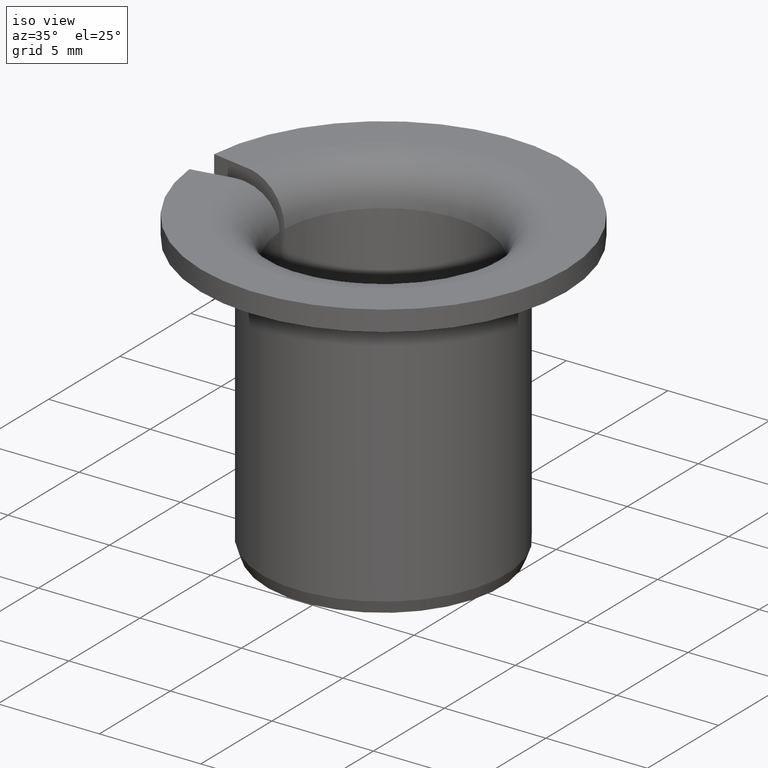
[diagram: clean part render]
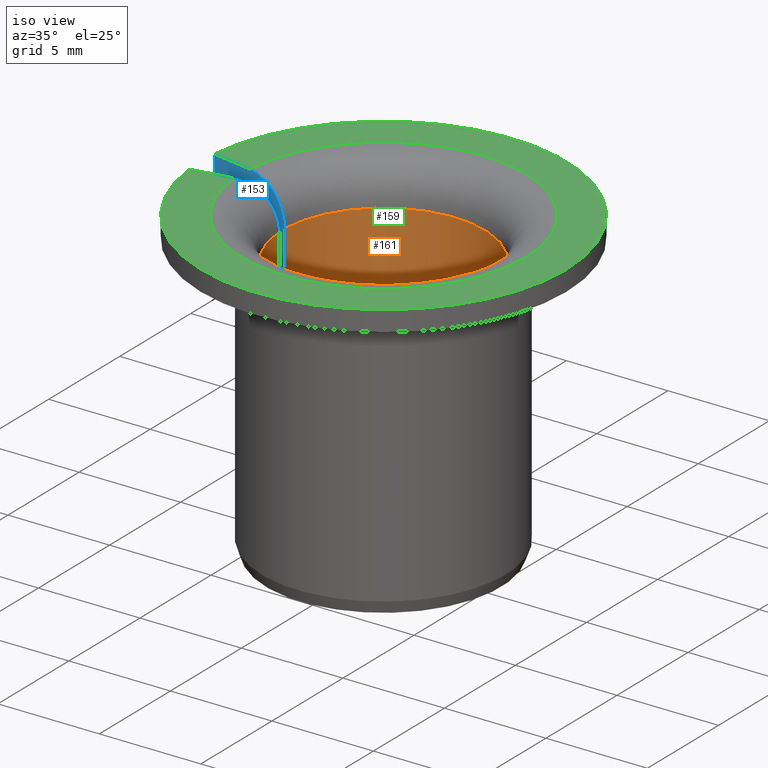
[diagram: same view with three faces highlighted in distinct colors, each labeled with its STEP entity id]
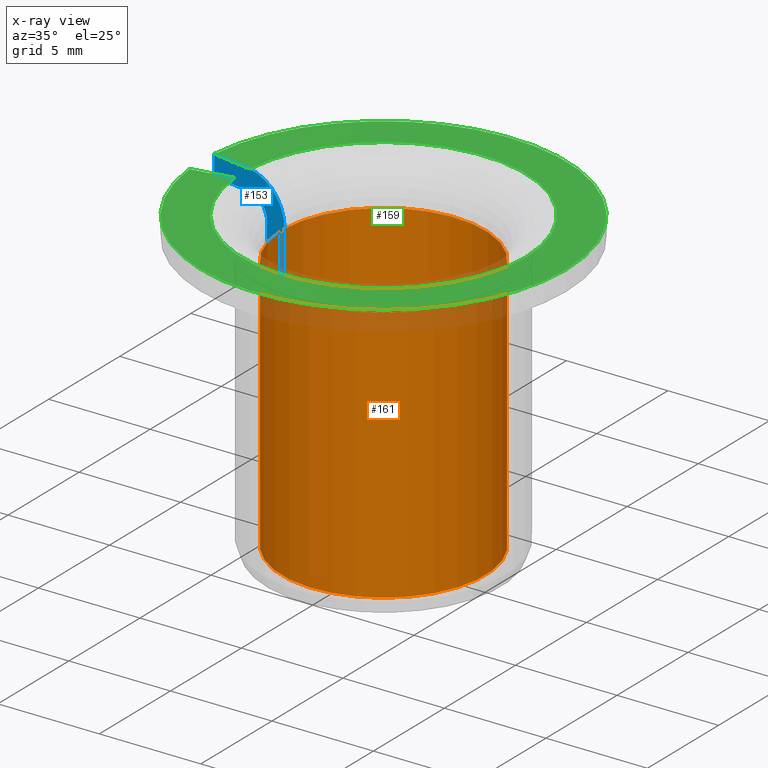
[diagram: x-ray of the same camera — body ghosted, the three highlighted faces saturated]
A machine part, iso view with three faces highlighted in distinct colors.
The next image is the same camera in x-ray (body ghosted, the three faces saturated) — at least one of them is partly hidden behind the body in this view.
Their STEP definitions:

[orange] entity #161 — the highlighted cylindrical surface (partial cylindrical patch) has radius 5 mm, axis along (-0, 0, -1).
#161=ADVANCED_FACE('',(#183),#184,.F.);
#183=FACE_OUTER_BOUND('',#208,.T.);
#184=CYLINDRICAL_SURFACE('',#209,0.005);
#208=EDGE_LOOP('',(#278,#279,#280,#281));
#209=AXIS2_PLACEMENT_3D('',#282,#283,#284);
#278=ORIENTED_EDGE('',*,*,#324,.T.);
#279=ORIENTED_EDGE('',*,*,#338,.T.);
#280=ORIENTED_EDGE('',*,*,#325,.F.);
#281=ORIENTED_EDGE('',*,*,#321,.F.);
#282=CARTESIAN_POINT('',(0.0,0.0,0.0));
#283=DIRECTION('',(0.0,-6.12323399573677E-017,-1.0));
#284=DIRECTION('',(0.0,1.0,-6.12323399573677E-017));
#321=EDGE_CURVE('',#359,#342,#361,.F.);
#324=EDGE_CURVE('',#359,#364,#366,.T.);
#325=EDGE_CURVE('',#342,#367,#368,.T.);
#338=EDGE_CURVE('',#364,#367,#387,.F.);
#342=VERTEX_POINT('',#392);
#359=VERTEX_POINT('',#439);
#361=LINE('',#444,#445);
#364=VERTEX_POINT('',#448);
#366=CIRCLE('',#453,0.005);
#367=VERTEX_POINT('',#454);
#368=CIRCLE('',#455,0.005);
#387=LINE('',#500,#501);
#392=CARTESIAN_POINT('',(0.00499690911439787,-0.000175781974182525,0.013));
#439=CARTESIAN_POINT('',(0.00499690911439787,-0.000175781974182526,0.0003));
#444=CARTESIAN_POINT('',(0.00499690911439787,-0.000175781974182526,-2.76794897842194E-020));
#445=VECTOR('',#515,1.0);
#448=CARTESIAN_POINT('',(0.00499690911439787,0.000175781974182527,0.0003));
#453=AXIS2_PLACEMENT_3D('',#519,#520,#521);
#454=CARTESIAN_POINT('',(0.00499690911439787,0.000175781974182527,0.013));
#455=AXIS2_PLACEMENT_3D('',#522,#523,#524);
#500=CARTESIAN_POINT('',(0.00499690911439787,0.000175781974182526,2.51145242543137E-020));
#501=VECTOR('',#547,1.0);
#515=DIRECTION('',(0.0,-6.12323399573677E-017,-1.0));
#519=CARTESIAN_POINT('',(0.0,0.0,0.0003));
#520=DIRECTION('',(0.0,-6.12323399573677E-017,-1.0));
#521=DIRECTION('',(0.0,1.0,-6.12323399573677E-017));
#522=CARTESIAN_POINT('',(0.0,0.0,0.013));
#523=DIRECTION('',(0.0,-6.12323399573677E-017,-1.0));
#524=DIRECTION('',(0.0,1.0,-6.12323399573677E-017));
#547=DIRECTION('',(0.0,-6.12323399573677E-017,-1.0));

[blue] entity #153 — the highlighted planar face has unit normal (0.1736, 0.9848, 0).
#153=ADVANCED_FACE('',(#167),#168,.F.);
#167=FACE_OUTER_BOUND('',#192,.T.);
#168=PLANE('',#193);
#192=EDGE_LOOP('',(#216,#217,#218,#219,#220,#221,#222,#223,#224,#225));
#193=AXIS2_PLACEMENT_3D('',#226,#227,#228);
#216=ORIENTED_EDGE('',*,*,#312,.T.);
#217=ORIENTED_EDGE('',*,*,#313,.F.);
#218=ORIENTED_EDGE('',*,*,#314,.T.);
#219=ORIENTED_EDGE('',*,*,#315,.T.);
#220=ORIENTED_EDGE('',*,*,#316,.T.);
#221=ORIENTED_EDGE('',*,*,#317,.T.);
#222=ORIENTED_EDGE('',*,*,#318,.T.);
#223=ORIENTED_EDGE('',*,*,#319,.F.);
#224=ORIENTED_EDGE('',*,*,#320,.T.);
#225=ORIENTED_EDGE('',*,*,#321,.T.);
#226=CARTESIAN_POINT('',(-0.00670955855681633,0.00188838412504393,-1.25764800889873E-018));
#227=DIRECTION('',(-0.173648177666931,-0.984807753012208,1.15648231731787E-016));
#228=DIRECTION('',(-2.00821046906277E-017,-1.13891275231616E-016,-1.0));
#312=EDGE_CURVE('',#342,#343,#344,.T.);
#313=EDGE_CURVE('',#345,#343,#346,.T.);
#314=EDGE_CURVE('',#345,#347,#348,.T.);
#315=EDGE_CURVE('',#347,#349,#350,.T.);
#316=EDGE_CURVE('',#349,#351,#352,.T.);
#317=EDGE_CURVE('',#351,#353,#354,.T.);
#318=EDGE_CURVE('',#353,#355,#356,.T.);
#319=EDGE_CURVE('',#357,#355,#358,.T.);
#320=EDGE_CURVE('',#357,#359,#360,.T.);
#321=EDGE_CURVE('',#359,#342,#361,.F.);
#342=VERTEX_POINT('',#392);
#343=VERTEX_POINT('',#393);
#344=B_SPLINE_CURVE_WITH_KNOTS('',3,(#394,#395,#396,#397,#398,#399,#400,#401,#402,#403,#404,#405,#406,#407),.UNSPECIFIED.,.F.,.F.,(4,2,2,2,2,2,4),(1.97148637082927E-007,0.000392055035355555,0.000783912922074027,0.0011757708087925,0.00156762869551097,0.00235134446894792,0.00313506024238487),.UNSPECIFIED.);
#345=VERTEX_POINT('',#408);
#346=LINE('',#409,#410);
#347=VERTEX_POINT('',#411);
#348=LINE('',#412,#413);
#349=VERTEX_POINT('',#414);
#350=LINE('',#415,#416);
#351=VERTEX_POINT('',#417);
#352=B_SPLINE_CURVE_WITH_KNOTS('',3,(#418,#419,#420,#421,#422,#423,#424,#425,#426,#427),.UNSPECIFIED.,.F.,.F.,(4,2,2,2,4),(2.00072936889103E-005,0.000411708104519548,0.000803408915350187,0.00119510972618082,0.00158681053701146),.UNSPECIFIED.);
#353=VERTEX_POINT('',#428);
#354=LINE('',#429,#430);
#355=VERTEX_POINT('',#431);
#356=B_SPLINE_CURVE_WITH_KNOTS('',3,(#432,#433,#434,#435),.UNSPECIFIED.,.F.,.F.,(4,4),(2.13004581254689E-007,0.000639246175160087),.UNSPECIFIED.);
#357=VERTEX_POINT('',#436);
#358=LINE('',#437,#438);
#359=VERTEX_POINT('',#439);
#360=B_SPLINE_CURVE_WITH_KNOTS('',3,(#440,#441,#442,#443),.UNSPECIFIED.,.F.,.F.,(4,4),(2.31469456632835E-007,0.000347463676522377),.UNSPECIFIED.);
#361=LINE('',#444,#445);
#392=CARTESIAN_POINT('',(0.00499690911439787,-0.000175781974182525,0.013));
#393=CARTESIAN_POINT('',(0.00698024726283339,-0.000525498001620076,0.015));
#394=CARTESIAN_POINT('',(0.00499690911439787,-0.000175781974182525,0.013));
#395=CARTESIAN_POINT('',(0.00499690911439787,-0.000175781974182525,0.0131325073022672));
#396=CARTESIAN_POINT('',(0.00500987598777973,-0.000178068383815177,0.0132627678241997));
#397=CARTESIAN_POINT('',(0.00506064444528327,-0.000187020232642003,0.0135189857382304));
#398=CARTESIAN_POINT('',(0.00509908036619081,-0.000193797522526379,0.0136462915934546));
#399=CARTESIAN_POINT('',(0.0051991852674803,-0.000211448717524873,0.0138886700301087));
#400=CARTESIAN_POINT('',(0.00526039991893803,-0.000222242512191536,0.0140035803095491));
#401=CARTESIAN_POINT('',(0.00540490011618038,-0.000247721795683058,0.0142209855930756));
#402=CARTESIAN_POINT('',(0.0054888201766522,-0.000262519166566925,0.0143237067417591));
#403=CARTESIAN_POINT('',(0.00576344234528216,-0.000310942464397057,0.0145998053688362));
#404=CARTESIAN_POINT('',(0.00598440069470476,-0.000349903383013071,0.0147483176485645));
#405=CARTESIAN_POINT('',(0.00646021006076225,-0.000433801411922796,0.0149471992978129));
#406=CARTESIAN_POINT('',(0.00671960322435305,-0.00047953942527518,0.015));
#407=CARTESIAN_POINT('',(0.00698024726283339,-0.000525498001620078,0.015));
#408=CARTESIAN_POINT('',(0.00895744903480042,-0.00087413202032245,0.015));
#409=CARTESIAN_POINT('',(0.0118784620240977,-0.00138918542133544,0.015));
#410=VECTOR('',#510,1.0);
#411=CARTESIAN_POINT('',(0.00895744903480042,-0.00087413202032245,0.014));
#412=CARTESIAN_POINT('',(0.00895744903480042,-0.000874132020322451,1.5082117650264E-020));
#413=VECTOR('',#511,1.0);
#414=CARTESIAN_POINT('',(0.00698024726283341,-0.00052549800162008,0.014));
#415=CARTESIAN_POINT('',(0.00690953893117886,-0.000513030214988501,0.014));
#416=VECTOR('',#512,1.0);
#417=CARTESIAN_POINT('',(0.00598973360714681,-0.000350843719362359,0.013));
#418=CARTESIAN_POINT('',(0.00698024726283341,-0.000525498001620082,0.014));
#419=CARTESIAN_POINT('',(0.00685023185644087,-0.000502572777565301,0.014));
#420=CARTESIAN_POINT('',(0.00672174279182906,-0.000479916688748246,0.0139740838243384));
#421=CARTESIAN_POINT('',(0.00648277217338819,-0.000437779721120534,0.0138743920227315));
#422=CARTESIAN_POINT('',(0.0063727205672248,-0.000418374653683625,0.0138003157734708));
#423=CARTESIAN_POINT('',(0.00618984042104949,-0.000386127949677009,0.0136164015934037));
#424=CARTESIAN_POINT('',(0.00611565501819323,-0.000373047061578725,0.0135048947289893));
#425=CARTESIAN_POINT('',(0.00601622534680585,-0.000355514927830153,0.0132640740875742));
#426=CARTESIAN_POINT('',(0.00598973360714299,-0.000350843719361686,0.0131324628118535));
#427=CARTESIAN_POINT('',(0.00598973360714293,-0.000350843719361676,0.0130000000000005));
#428=CARTESIAN_POINT('',(0.00598973360714681,-0.000350843719362359,0.0006));
#429=CARTESIAN_POINT('',(0.00598973360714681,-0.000350843719362359,-1.69600494898377E-020));
#430=VECTOR('',#513,1.0);
#431=CARTESIAN_POINT('',(0.00577315785052536,-0.000312655570102648,6.43083039248804E-019));
#432=CARTESIAN_POINT('',(0.00598973360714681,-0.000350843719362362,0.000599999999999998));
#433=CARTESIAN_POINT('',(0.00591755802003092,-0.000338117216005356,0.000399993922389269));
#434=CARTESIAN_POINT('',(0.00584536672532868,-0.000325387942977074,0.000199993688463095));
#435=CARTESIAN_POINT('',(0.00577315785052536,-0.000312655570102649,5.41743120010639E-019));
#436=CARTESIAN_POINT('',(0.00516909622521673,-0.00020614320755013,6.43083039248804E-019));
#437=CARTESIAN_POINT('',(0.004,0.0,6.43083039248804E-019));
#438=VECTOR('',#514,1.0);
#439=CARTESIAN_POINT('',(0.00499690911439787,-0.000175781974182526,0.0003));
#440=CARTESIAN_POINT('',(0.00516909622521673,-0.00020614320755013,-8.34540025536637E-019));
#441=CARTESIAN_POINT('',(0.00511171415103256,-0.000196025199662446,0.00010000806463709));
#442=CARTESIAN_POINT('',(0.00505431892522167,-0.000185904872788131,0.000200008350054885));
#443=CARTESIAN_POINT('',(0.00499690911439787,-0.000175781974182527,0.000299999999999999));
#444=CARTESIAN_POINT('',(0.00499690911439787,-0.000175781974182526,-2.76794897842194E-020));
#445=VECTOR('',#515,1.0);
#510=DIRECTION('',(-0.984807753012208,0.173648177666931,0.0));
#511=DIRECTION('',(0.0,-6.12323399573677E-017,-1.0));
#512=DIRECTION('',(-0.984807753012208,0.173648177666931,-1.06328842478789E-017));
#513=DIRECTION('',(0.0,-6.12323399573677E-017,-1.0));
#514=DIRECTION('',(0.984807753012208,-0.173648177666931,0.0));
#515=DIRECTION('',(0.0,-6.12323399573677E-017,-1.0));

[green] entity #159 — the highlighted planar face has unit normal (0, -0, 1).
#159=ADVANCED_FACE('',(#179),#180,.T.);
#179=FACE_OUTER_BOUND('',#204,.T.);
#180=PLANE('',#205);
#204=EDGE_LOOP('',(#264,#265,#266,#267));
#205=AXIS2_PLACEMENT_3D('',#268,#269,#270);
#264=ORIENTED_EDGE('',*,*,#327,.T.);
#265=ORIENTED_EDGE('',*,*,#335,.F.);
#266=ORIENTED_EDGE('',*,*,#333,.F.);
#267=ORIENTED_EDGE('',*,*,#313,.T.);
#268=CARTESIAN_POINT('',(0.009,0.0,0.015));
#269=DIRECTION('',(0.0,6.12323399573677E-017,1.0));
#270=DIRECTION('',(0.0,-1.0,6.12323399573677E-017));
#313=EDGE_CURVE('',#345,#343,#346,.T.);
#327=EDGE_CURVE('',#343,#369,#371,.T.);
#333=EDGE_CURVE('',#345,#380,#381,.T.);
#335=EDGE_CURVE('',#380,#369,#383,.T.);
#343=VERTEX_POINT('',#393);
#345=VERTEX_POINT('',#408);
#346=LINE('',#409,#410);
#369=VERTEX_POINT('',#456);
#371=CIRCLE('',#471,0.007);
#380=VERTEX_POINT('',#490);
#381=CIRCLE('',#491,0.009);
#383=LINE('',#494,#495);
#393=CARTESIAN_POINT('',(0.00698024726283339,-0.000525498001620076,0.015));
#408=CARTESIAN_POINT('',(0.00895744903480042,-0.00087413202032245,0.015));
#409=CARTESIAN_POINT('',(0.0118784620240977,-0.00138918542133544,0.015));
#410=VECTOR('',#510,1.0);
#456=CARTESIAN_POINT('',(0.00698024726283339,0.00052549800162008,0.015));
#471=AXIS2_PLACEMENT_3D('',#525,#526,#527);
#490=CARTESIAN_POINT('',(0.00895744903480042,0.000874132020322453,0.015));
#491=AXIS2_PLACEMENT_3D('',#538,#539,#540);
#494=CARTESIAN_POINT('',(0.0118784620240977,0.00138918542133544,0.015));
#495=VECTOR('',#542,1.0);
#510=DIRECTION('',(-0.984807753012208,0.173648177666931,0.0));
#525=CARTESIAN_POINT('',(0.0,0.0,0.015));
#526=DIRECTION('',(0.0,-6.12323399573677E-017,-1.0));
#527=DIRECTION('',(0.0,1.0,-6.12323399573677E-017));
#538=CARTESIAN_POINT('',(0.0,0.0,0.015));
#539=DIRECTION('',(0.0,-6.12323399573677E-017,-1.0));
#540=DIRECTION('',(0.0,1.0,-6.12323399573677E-017));
#542=DIRECTION('',(-0.984807753012208,-0.173648177666931,2.0942693688385E-017));